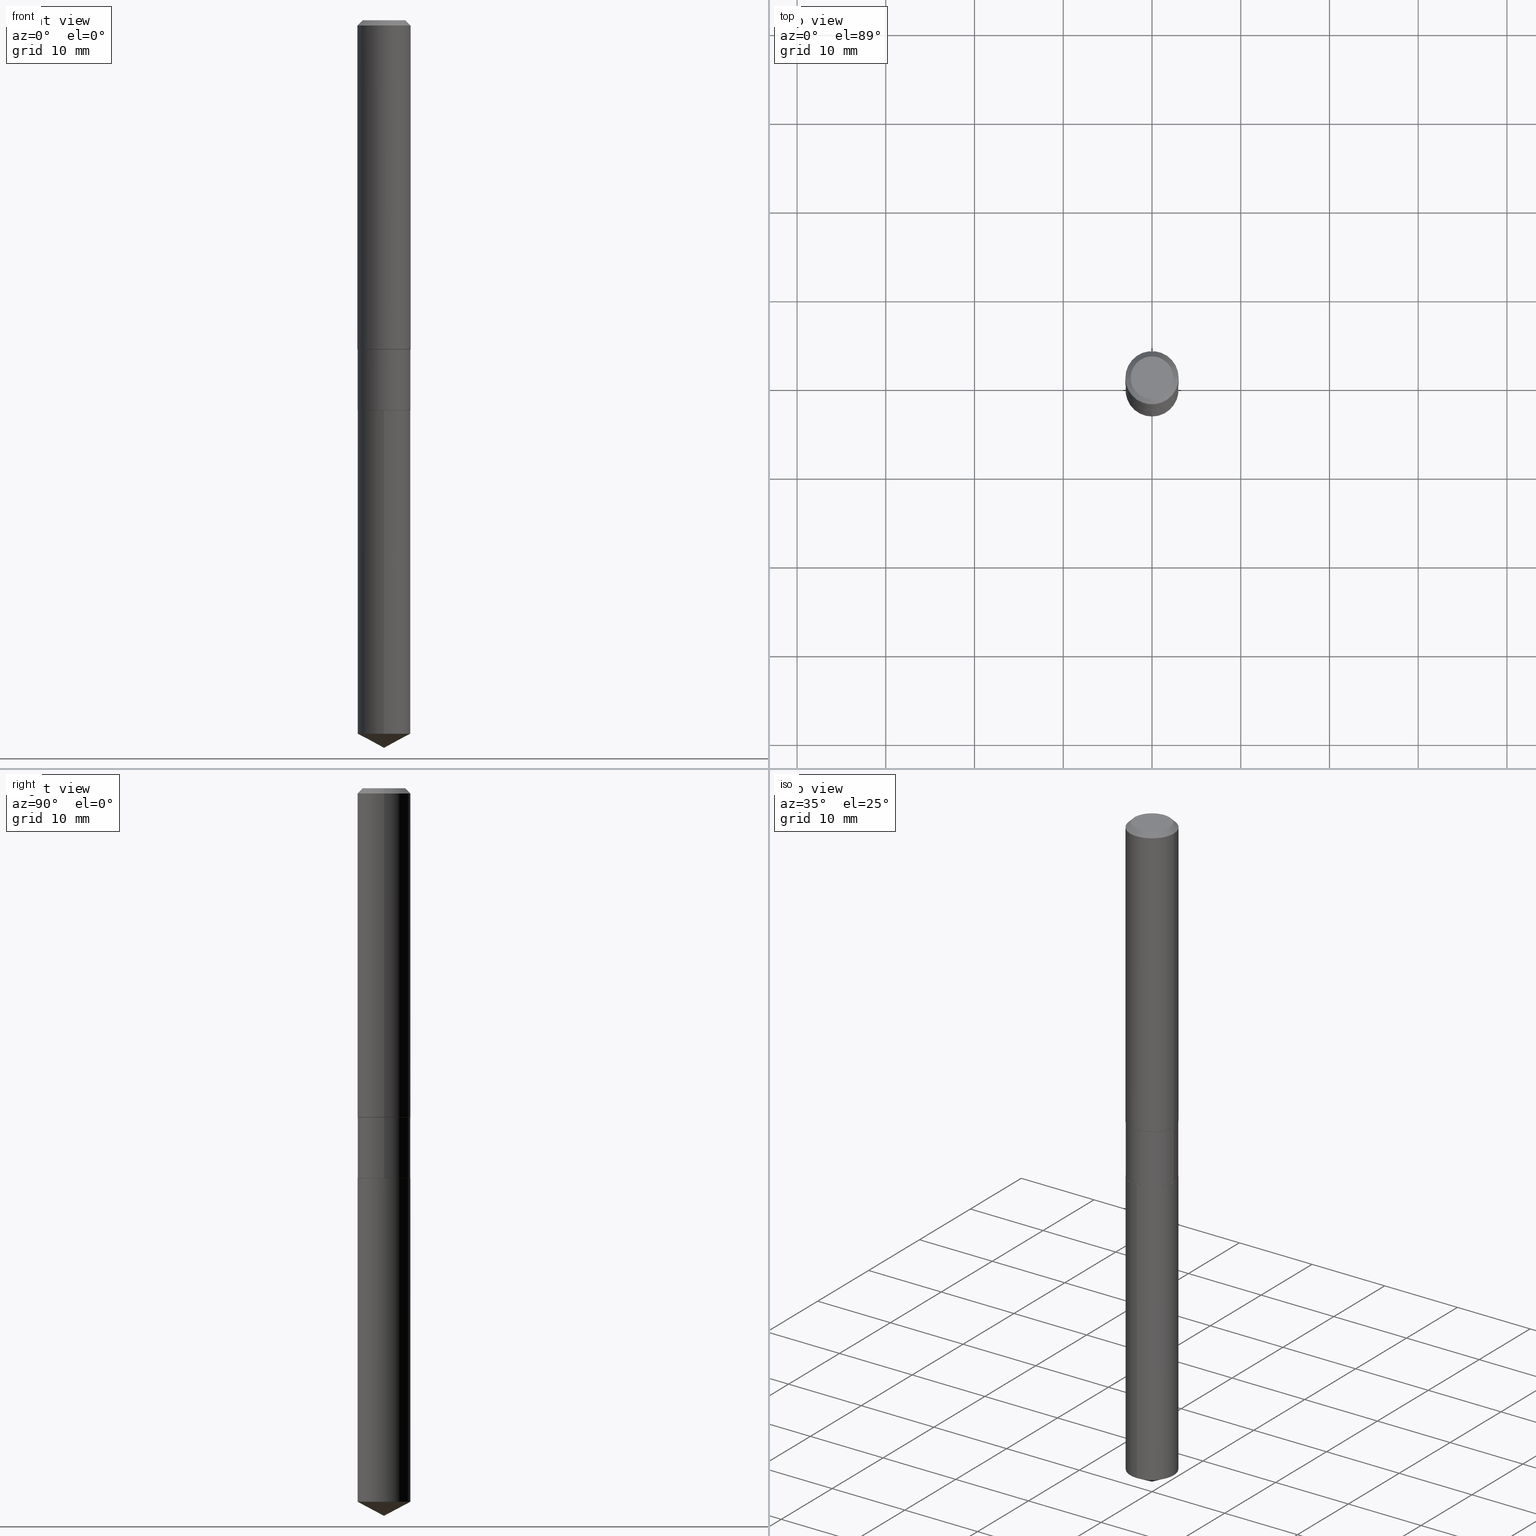
[diagram: canonical four-view strip — front | top / right | iso, engineering-drawing reading convention]
A machine part, canonical four-view strip (front | top / right | iso — engineering-drawing reading convention). The complete STEP part file that produces these views, byte-faithful:
ISO-10303-21;
HEADER;
FILE_DESCRIPTION (( 'STEP AP203' ),
    '1' );
FILE_NAME ('55009.STEP',
    '2024-04-24T16:16:54',
    ( '' ),
    ( '' ),
    'SwSTEP 2.0',
    'SolidWorks 2023',
    '' );
FILE_SCHEMA (( 'CONFIG_CONTROL_DESIGN' ));
ENDSEC;

DATA;
#1 = CARTESIAN_POINT ( 'NONE',  ( 8.327560863108796121E-16, 0.1171999999999939479, -1.730400000000000160 ) ) ;
#2 = APPROVAL ( #258, 'UNSPECIFIED' ) ;
#3 = CIRCLE ( 'NONE', #425, 0.1180999999999999966 ) ;
#4 = CIRCLE ( 'NONE', #262, 0.1171999999999999986 ) ;
#5 = EDGE_LOOP ( 'NONE', ( #103, #471, #56, #168 ) ) ;
#6 = CARTESIAN_POINT ( 'NONE',  ( 7.741833882024007276E-29, -1.105256272999543898E-14, -3.165683654609275255 ) ) ;
#7 = ORIENTED_EDGE ( 'NONE', *, *, #349, .F. ) ;
#8 = DIRECTION ( 'NONE',  ( -6.165590087286832874E-15, -0.8829475928589261002, 0.4694715627858920826 ) ) ;
#9 = DIRECTION ( 'NONE',  ( 1.000000000000000000, -6.982962677686269866E-15, 0.000000000000000000 ) ) ;
#10 = LINE ( 'NONE', #421, #111 ) ;
#11 = AXIS2_PLACEMENT_3D ( 'NONE', #232, #383, #317 ) ;
#12 = FACE_OUTER_BOUND ( 'NONE', #30, .T. ) ;
#13 = APPROVAL_PERSON_ORGANIZATION ( #443, #228, #444 ) ;
#14 = EDGE_CURVE ( 'NONE', #66, #247, #209, .T. ) ;
#15 = ORIENTED_EDGE ( 'NONE', *, *, #42, .T. ) ;
#16 = LENGTH_MEASURE_WITH_UNIT ( LENGTH_MEASURE( 0.02539999999999999897 ), #214 );
#17 = CLOSED_SHELL ( 'NONE', ( #484, #276, #101, #252, #163 ) ) ;
#18 = AXIS2_PLACEMENT_3D ( 'NONE', #192, #84, #40 ) ;
#19 = PERSON_AND_ORGANIZATION_ROLE ( 'design_supplier' ) ;
#20 = LOCAL_TIME ( 12, 16, 54.00000000000000000, #364 ) ;
#21 = VERTEX_POINT ( 'NONE', #386 ) ;
#22 = EDGE_CURVE ( 'NONE', #100, #50, #354, .T. ) ;
#23 = ORIENTED_EDGE ( 'NONE', *, *, #182, .T. ) ;
#24 = DIRECTION ( 'NONE',  ( 1.000000000000000000, -6.982962677686266711E-15, 4.876176775795935793E-29 ) ) ;
#25 = PERSON_AND_ORGANIZATION_ROLE ( 'classification_officer' ) ;
#26 = DIRECTION ( 'NONE',  ( 1.000000000000000000, -6.982962677686263555E-15, 0.000000000000000000 ) ) ;
#27 = COORDINATED_UNIVERSAL_TIME_OFFSET ( 5, 0, .BEHIND. ) ;
#28 = DIRECTION ( 'NONE',  ( 1.000000000000000000, -6.982962677686266711E-15, 0.000000000000000000 ) ) ;
#29 = ADVANCED_FACE ( 'NONE', ( #479 ), #296, .T. ) ;
#30 = EDGE_LOOP ( 'NONE', ( #331, #318, #125, #481 ) ) ;
#31 = ORIENTED_EDGE ( 'NONE', *, *, #204, .F. ) ;
#32 = DIRECTION ( 'NONE',  ( 1.000000000000000000, -6.982962677686265133E-15, 0.000000000000000000 ) ) ;
#33 = CIRCLE ( 'NONE', #78, 0.1180999999999999966 ) ;
#34 = APPROVAL ( #173, 'UNSPECIFIED' ) ;
#35 = DIRECTION ( 'NONE',  ( 1.000000000000000000, -6.982962677686265133E-15, 0.000000000000000000 ) ) ;
#36 = LINE ( 'NONE', #181, #321 ) ;
#37 = PRODUCT ( '55009', '55009', '', ( #49 ) ) ;
#38 = DIRECTION ( 'NONE',  ( -2.445468806185136597E-29, 3.491481338843145583E-15, 1.000000000000000000 ) ) ;
#39 = CONICAL_SURFACE ( 'NONE', #185, 0.1180999999999999966, 0.7853981633974461696 ) ;
#40 = DIRECTION ( 'NONE',  ( -6.982962677686265922E-15, -1.000000000000000000, 2.330928322239132474E-15 ) ) ;
#41 = CARTESIAN_POINT ( 'NONE',  ( -0.09447999999999998066, 7.009847083995354710E-16, -2.700101262760559836E-17 ) ) ;
#42 = EDGE_CURVE ( 'NONE', #361, #52, #3, .T. ) ;
#43 = DIRECTION ( 'NONE',  ( -2.445645255227839855E-29, 3.491228653771138888E-15, 1.000000000000000000 ) ) ;
#44 = DIRECTION ( 'NONE',  ( -0.7071067811865460184, 2.468850131082241283E-15, -0.7071067811865490160 ) ) ;
#45 = CARTESIAN_POINT ( 'NONE',  ( 4.231639222222760531E-29, -6.041659308734178576E-15, -1.730399999999999938 ) ) ;
#46 = FACE_OUTER_BOUND ( 'NONE', #375, .T. ) ;
#47 = AXIS2_PLACEMENT_3D ( 'NONE', #416, #73, #222 ) ;
#48 = CARTESIAN_POINT ( 'NONE',  ( 3.572340832075246748E-29, -5.100355939782065986E-15, -1.460799999999999876 ) ) ;
#49 = MECHANICAL_CONTEXT ( 'NONE', #134, 'mechanical' ) ;
#50 = VERTEX_POINT ( 'NONE', #439 ) ;
#51 = AXIS2_PLACEMENT_3D ( 'NONE', #225, #390, #112 ) ;
#52 = VERTEX_POINT ( 'NONE', #166 ) ;
#53 = CARTESIAN_POINT ( 'NONE',  ( -0.1171999999999999709, -4.737378667612574713E-15, -1.460799999999999876 ) ) ;
#54 = ORIENTED_EDGE ( 'NONE', *, *, #435, .T. ) ;
#55 = DATE_TIME_ROLE ( 'classification_date' ) ;
#56 = ORIENTED_EDGE ( 'NONE', *, *, #455, .T. ) ;
#57 = APPROVAL_STATUS ( 'not_yet_approved' ) ;
#58 = EDGE_LOOP ( 'NONE', ( #378, #64, #320, #15 ) ) ;
#59 = EDGE_CURVE ( 'NONE', #52, #361, #33, .T. ) ;
#60 = CALENDAR_DATE ( 2024, 24, 4 ) ;
#61 = VECTOR ( 'NONE', #267, 39.37007874015748854 ) ;
#62 = ORIENTED_EDGE ( 'NONE', *, *, #182, .F. ) ;
#63 = FACE_OUTER_BOUND ( 'NONE', #245, .T. ) ;
#64 = ORIENTED_EDGE ( 'NONE', *, *, #336, .F. ) ;
#65 = PERSON_AND_ORGANIZATION ( #114, #98 ) ;
#66 = VERTEX_POINT ( 'NONE', #287 ) ;
#67 = FACE_OUTER_BOUND ( 'NONE', #122, .T. ) ;
#68 = ADVANCED_FACE ( 'NONE', ( #208 ), #355, .T. ) ;
#69 = ORIENTED_EDGE ( 'NONE', *, *, #204, .T. ) ;
#70 = DIRECTION ( 'NONE',  ( 1.000000000000000000, -6.982962677686265133E-15, 0.000000000000000000 ) ) ;
#71 = AXIS2_PLACEMENT_3D ( 'NONE', #388, #83, #391 ) ;
#72 = CC_DESIGN_DATE_AND_TIME_ASSIGNMENT ( #404, #55, ( #385 ) ) ;
#73 = DIRECTION ( 'NONE',  ( 2.445645255227839294E-29, -3.491228653771138888E-15, -1.000000000000000000 ) ) ;
#74 = DIRECTION ( 'NONE',  ( -6.982962677686265922E-15, -1.000000000000000000, 4.661856644478264948E-15 ) ) ;
#75 = DIRECTION ( 'NONE',  ( 1.000000000000000000, -6.982962677686265133E-15, 0.000000000000000000 ) ) ;
#76 = EDGE_CURVE ( 'NONE', #129, #21, #468, .T. ) ;
#77 = PERSON_AND_ORGANIZATION ( #114, #98 ) ;
#78 = AXIS2_PLACEMENT_3D ( 'NONE', #243, #326, #292 ) ;
#79 = CC_DESIGN_APPROVAL ( #34, ( #395 ) ) ;
#80 = ORIENTED_EDGE ( 'NONE', *, *, #59, .F. ) ;
#81 = DIRECTION ( 'NONE',  ( -2.445468806185136877E-29, 3.491481338843145188E-15, 1.000000000000000000 ) ) ;
#82 = UNCERTAINTY_MEASURE_WITH_UNIT (LENGTH_MEASURE( 1.000000000000000082E-05 ), #432, 'distance_accuracy_value', 'NONE');
#83 = DIRECTION ( 'NONE',  ( -2.445468806185136597E-29, 3.491481338843145583E-15, 1.000000000000000000 ) ) ;
#84 = DIRECTION ( 'NONE',  ( -2.445645255227839855E-29, 3.491228653771138888E-15, 1.000000000000000000 ) ) ;
#85 = CIRCLE ( 'NONE', #18, 0.1171999999999999986 ) ;
#86 = CYLINDRICAL_SURFACE ( 'NONE', #351, 0.1171999999999999847 ) ;
#87 = DIRECTION ( 'NONE',  ( -2.445645255227839855E-29, 3.491228653771138888E-15, 1.000000000000000000 ) ) ;
#88 = ORIENTED_EDGE ( 'NONE', *, *, #330, .T. ) ;
#89 = DIRECTION ( 'NONE',  ( -6.982962677686268288E-15, -1.000000000000000000, 3.541896320645563630E-15 ) ) ;
#90 = AXIS2_PLACEMENT_3D ( 'NONE', #94, #256, #406 ) ;
#91 = ORIENTED_EDGE ( 'NONE', *, *, #290, .F. ) ;
#92 = VERTEX_POINT ( 'NONE', #186 ) ;
#93 = EDGE_CURVE ( 'NONE', #426, #266, #251, .T. ) ;
#94 = CARTESIAN_POINT ( 'NONE',  ( 0.000000000000000000, 0.000000000000000000, 0.000000000000000000 ) ) ;
#95 = DATE_AND_TIME ( #295, #20 ) ;
#96 = VECTOR ( 'NONE', #352, 39.37007874015748143 ) ;
#97 = ORIENTED_EDGE ( 'NONE', *, *, #382, .T. ) ;
#98 = ORGANIZATION ( 'UNSPECIFIED', 'UNSPECIFIED', '' ) ;
#99 = APPLICATION_PROTOCOL_DEFINITION ( 'international standard', 'config_control_design', 1994, #452 ) ;
#100 = VERTEX_POINT ( 'NONE', #180 ) ;
#101 = ADVANCED_FACE ( 'NONE', ( #46 ), #458, .T. ) ;
#102 = PERSON_AND_ORGANIZATION ( #114, #98 ) ;
#103 = ORIENTED_EDGE ( 'NONE', *, *, #106, .F. ) ;
#104 = PLANE ( 'NONE',  #47 ) ;
#105 = CIRCLE ( 'NONE', #242, 0.1171999999999999709 ) ;
#106 = EDGE_CURVE ( 'NONE', #129, #324, #240, .T. ) ;
#107 = CARTESIAN_POINT ( 'NONE',  ( 4.231639222222760531E-29, -6.041659308734178576E-15, -1.730399999999999938 ) ) ;
#108 = CARTESIAN_POINT ( 'NONE',  ( -0.1166999999999999982, -5.212455936102142263E-15, -1.730400000000000160 ) ) ;
#109 = VERTEX_POINT ( 'NONE', #401 ) ;
#110 = CARTESIAN_POINT ( 'NONE',  ( 0.1181000000000001632, -5.921901498811854753E-15, -1.459899999999999531 ) ) ;
#111 = VECTOR ( 'NONE', #81, 39.37007874015748143 ) ;
#112 = DIRECTION ( 'NONE',  ( 1.000000000000000000, -6.982962677686266711E-15, 4.876176775795936353E-29 ) ) ;
#113 = CC_DESIGN_PERSON_AND_ORGANIZATION_ASSIGNMENT ( #65, #411, ( #175 ) ) ;
#114 = PERSON ( 'UNSPECIFIED', 'UNSPECIFIED', 'UNSPECIFIED', ('UNSPECIFIED'), ('UNSPECIFIED'), ('UNSPECIFIED') ) ;
#115 = DIRECTION ( 'NONE',  ( -2.445645255227839855E-29, 3.491228653771138888E-15, 1.000000000000000000 ) ) ;
#116 = LINE ( 'NONE', #153, #270 ) ;
#117 = PERSON_AND_ORGANIZATION_ROLE ( 'creator' ) ;
#118 = CALENDAR_DATE ( 2024, 24, 4 ) ;
#119 = EDGE_LOOP ( 'NONE', ( #483, #358 ) ) ;
#120 = AXIS2_PLACEMENT_3D ( 'NONE', #107, #115, #233 ) ;
#121 = ADVANCED_BREP_SHAPE_REPRESENTATION ( '55009', ( #413, #238, #90 ), #338 ) ;
#122 = EDGE_LOOP ( 'NONE', ( #199, #470 ) ) ;
#123 = ADVANCED_FACE ( 'NONE', ( #63 ), #203, .T. ) ;
#124 = ORIENTED_EDGE ( 'NONE', *, *, #22, .T. ) ;
#125 = ORIENTED_EDGE ( 'NONE', *, *, #138, .T. ) ;
#126 = CARTESIAN_POINT ( 'NONE',  ( 0.000000000000000000, 0.000000000000000000, 0.000000000000000000 ) ) ;
#127 = AXIS2_PLACEMENT_3D ( 'NONE', #298, #43, #190 ) ;
#128 = ADVANCED_FACE ( 'NONE', ( #325 ), #344, .T. ) ;
#129 = VERTEX_POINT ( 'NONE', #136 ) ;
#130 = EDGE_LOOP ( 'NONE', ( #187, #219, #80, #7 ) ) ;
#131 = DIRECTION ( 'NONE',  ( 1.000000000000000000, -6.982962677686263555E-15, 0.000000000000000000 ) ) ;
#132 = PERSON_AND_ORGANIZATION ( #114, #98 ) ;
#133 = DIRECTION ( 'NONE',  ( -2.445468806185136597E-29, 3.491481338843145583E-15, 1.000000000000000000 ) ) ;
#134 = APPLICATION_CONTEXT ( 'configuration controlled 3d designs of mechanical parts and assemblies' ) ;
#135 = CARTESIAN_POINT ( 'NONE',  ( 3.572340832075246748E-29, -5.100355939782065986E-15, -1.460799999999999876 ) ) ;
#136 = CARTESIAN_POINT ( 'NONE',  ( -0.1172000000000000125, -4.737378667612574713E-15, -1.729899999999999993 ) ) ;
#137 = DIRECTION ( 'NONE',  ( -6.982962677686265922E-15, -1.000000000000000000, 2.330928322239132474E-15 ) ) ;
#138 = EDGE_CURVE ( 'NONE', #426, #21, #36, .T. ) ;
#139 = AXIS2_PLACEMENT_3D ( 'NONE', #212, #376, #342 ) ;
#140 = ORIENTED_EDGE ( 'NONE', *, *, #374, .F. ) ;
#141 = CARTESIAN_POINT ( 'NONE',  ( -0.1181000000000000799, 8.391509709326788873E-16, -5.809262341591047988E-30 ) ) ;
#142 = DIRECTION ( 'NONE',  ( -2.445468806185136597E-29, 3.491481338843145583E-15, 1.000000000000000000 ) ) ;
#143 = SHAPE_DEFINITION_REPRESENTATION ( #300, #121 ) ;
#144 = LINE ( 'NONE', #1, #156 ) ;
#145 = COORDINATED_UNIVERSAL_TIME_OFFSET ( 5, 0, .BEHIND. ) ;
#146 = DIRECTION ( 'NONE',  ( -2.445468806185136597E-29, 3.491481338843145583E-15, 1.000000000000000000 ) ) ;
#147 = CARTESIAN_POINT ( 'NONE',  ( 0.1171999999999999709, -5.918759165606896047E-15, -1.460799999999999876 ) ) ;
#148 = EDGE_CURVE ( 'NONE', #109, #361, #263, .T. ) ;
#149 = CONICAL_SURFACE ( 'NONE', #202, 0.1166999999999999982, 0.7853981633972775267 ) ;
#150 = CARTESIAN_POINT ( 'NONE',  ( 3.572340832075246748E-29, -5.100355939782065986E-15, -1.460799999999999876 ) ) ;
#151 = ORIENTED_EDGE ( 'NONE', *, *, #22, .F. ) ;
#152 = CARTESIAN_POINT ( 'NONE',  ( -0.1180999999999999966, -1.750690226967611791E-15, -0.02362000000000014088 ) ) ;
#153 = CARTESIAN_POINT ( 'NONE',  ( -0.1180999999999999966, 7.422191030112725094E-16, -0.02362000000000014088 ) ) ;
#154 = DIRECTION ( 'NONE',  ( 1.000000000000000000, -6.982962677686270655E-15, 0.000000000000000000 ) ) ;
#155 = AXIS2_PLACEMENT_3D ( 'NONE', #195, #87, #89 ) ;
#156 = VECTOR ( 'NONE', #303, 39.37007874015748143 ) ;
#157 = CARTESIAN_POINT ( 'NONE',  ( 8.327560863109149136E-16, 0.1171999999999939340, -1.730400000000000160 ) ) ;
#158 = LINE ( 'NONE', #108, #221 ) ;
#159 = DIRECTION ( 'NONE',  ( -0.7071067811864267805, 7.493145998869918709E-15, 0.7071067811866682540 ) ) ;
#160 = DIRECTION ( 'NONE',  ( -2.445645255227839855E-29, 3.491228653771138888E-15, 1.000000000000000000 ) ) ;
#161 = DIRECTION ( 'NONE',  ( 0.7071067811865460184, -7.319954787623251312E-15, -0.7071067811865490160 ) ) ;
#162 = ORIENTED_EDGE ( 'NONE', *, *, #374, .T. ) ;
#163 = ADVANCED_FACE ( 'NONE', ( #294 ), #104, .F. ) ;
#164 = CIRCLE ( 'NONE', #120, 0.1171999999999999986 ) ;
#165 =( NAMED_UNIT ( * ) SI_UNIT ( $, .STERADIAN. ) SOLID_ANGLE_UNIT ( ) );
#166 = CARTESIAN_POINT ( 'NONE',  ( 0.1180999999999999966, -9.071566814582237199E-16, -0.02362000000000014088 ) ) ;
#167 = ADVANCED_FACE ( 'NONE', ( #67 ), #220, .F. ) ;
#168 = ORIENTED_EDGE ( 'NONE', *, *, #382, .F. ) ;
#169 = ORIENTED_EDGE ( 'NONE', *, *, #280, .F. ) ;
#170 = DIRECTION ( 'NONE',  ( 2.445468806185136597E-29, -3.491481338843145583E-15, -1.000000000000000000 ) ) ;
#171 = CARTESIAN_POINT ( 'NONE',  ( 5.776197320209327532E-31, -8.246878922347559293E-17, -0.02362000000000014088 ) ) ;
#172 = DIRECTION ( 'NONE',  ( 2.445468806185136597E-29, -3.491481338843145583E-15, -1.000000000000000000 ) ) ;
#173 = APPROVAL_STATUS ( 'not_yet_approved' ) ;
#174 = CARTESIAN_POINT ( 'NONE',  ( 0.000000000000000000, 0.000000000000000000, 0.000000000000000000 ) ) ;
#175 = PRODUCT_DEFINITION ( 'UNKNOWN', '', #395, #451 ) ;
#176 = EDGE_LOOP ( 'NONE', ( #327, #257, #472, #230 ) ) ;
#177 = CARTESIAN_POINT ( 'NONE',  ( 4.231639222222761092E-29, -6.041659308734179365E-15, -1.730400000000000160 ) ) ;
#178 = VECTOR ( 'NONE', #381, 39.37007874015748143 ) ;
#179 = DIRECTION ( 'NONE',  ( 0.7071067811864267805, -2.468850131080992517E-15, 0.7071067811866682540 ) ) ;
#180 = CARTESIAN_POINT ( 'NONE',  ( 8.327560863109148150E-16, 0.1171999999999889519, -3.165683654609275699 ) ) ;
#181 = CARTESIAN_POINT ( 'NONE',  ( 0.1166999999999999982, -6.856571053220166418E-15, -1.730400000000000160 ) ) ;
#182 = EDGE_CURVE ( 'NONE', #324, #109, #410, .T. ) ;
#183 = DIRECTION ( 'NONE',  ( 1.000000000000000000, -6.982962677686265922E-15, 4.876176775795935793E-29 ) ) ;
#184 = AXIS2_PLACEMENT_3D ( 'NONE', #135, #368, #131 ) ;
#185 = AXIS2_PLACEMENT_3D ( 'NONE', #369, #172, #373 ) ;
#186 = CARTESIAN_POINT ( 'NONE',  ( 7.894542883875466127E-29, -1.126968609437323683E-14, -3.228000000000000203 ) ) ;
#187 = ORIENTED_EDGE ( 'NONE', *, *, #290, .T. ) ;
#188 = PERSON_AND_ORGANIZATION ( #114, #98 ) ;
#189 = EDGE_CURVE ( 'NONE', #266, #426, #380, .T. ) ;
#190 = DIRECTION ( 'NONE',  ( -6.982962677686265922E-15, -1.000000000000000000, 4.661856644478264948E-15 ) ) ;
#191 = DIRECTION ( 'NONE',  ( -6.982962677686265922E-15, -1.000000000000000000, 2.330928322239132474E-15 ) ) ;
#192 = CARTESIAN_POINT ( 'NONE',  ( 4.231639222222760531E-29, -6.041659308734178576E-15, -1.730399999999999938 ) ) ;
#193 = DIRECTION ( 'NONE',  ( -1.000000000000000000, 6.982962677686265922E-15, -4.876176775795935793E-29 ) ) ;
#194 = VECTOR ( 'NONE', #8, 39.37007874015748854 ) ;
#195 = CARTESIAN_POINT ( 'NONE',  ( -8.839100871236061218E-28, 1.261798236582419086E-13, 36.14207874015747990 ) ) ;
#196 = ADVANCED_FACE ( 'NONE', ( #339 ), #446, .T. ) ;
#197 = ORIENTED_EDGE ( 'NONE', *, *, #345, .F. ) ;
#198 = CC_DESIGN_PERSON_AND_ORGANIZATION_ASSIGNMENT ( #307, #19, ( #395 ) ) ;
#199 = ORIENTED_EDGE ( 'NONE', *, *, #93, .F. ) ;
#200 = AXIS2_PLACEMENT_3D ( 'NONE', #45, #160, #137 ) ;
#201 = ORIENTED_EDGE ( 'NONE', *, *, #106, .T. ) ;
#202 = AXIS2_PLACEMENT_3D ( 'NONE', #217, #418, #70 ) ;
#203 = CYLINDRICAL_SURFACE ( 'NONE', #474, 0.1171999999999999847 ) ;
#204 = EDGE_CURVE ( 'NONE', #100, #464, #144, .T. ) ;
#205 = ORIENTED_EDGE ( 'NONE', *, *, #330, .F. ) ;
#206 = CARTESIAN_POINT ( 'NONE',  ( 3.572340832075246748E-29, -5.100355939782065986E-15, -1.460799999999999876 ) ) ;
#207 = VERTEX_POINT ( 'NONE', #147 ) ;
#208 = FACE_OUTER_BOUND ( 'NONE', #359, .T. ) ;
#209 = CIRCLE ( 'NONE', #139, 0.09447999999999998066 ) ;
#210 = AXIS2_PLACEMENT_3D ( 'NONE', #206, #363, #26 ) ;
#211 = CALENDAR_DATE ( 2024, 24, 4 ) ;
#212 = CARTESIAN_POINT ( 'NONE',  ( 6.603013411620882309E-46, -9.427353171913646324E-32, -2.700101262760083747E-17 ) ) ;
#213 = FACE_OUTER_BOUND ( 'NONE', #356, .T. ) ;
#214 =( LENGTH_UNIT ( ) NAMED_UNIT ( * ) SI_UNIT ( $, .METRE. ) );
#215 = ADVANCED_FACE ( 'NONE', ( #213 ), #149, .T. ) ;
#216 = ORIENTED_EDGE ( 'NONE', *, *, #397, .F. ) ;
#217 = CARTESIAN_POINT ( 'NONE',  ( 4.231639222222761092E-29, -6.041659308734179365E-15, -1.730400000000000160 ) ) ;
#218 = APPROVAL_DATE_TIME ( #485, #34 ) ;
#219 = ORIENTED_EDGE ( 'NONE', *, *, #148, .T. ) ;
#220 = PLANE ( 'NONE',  #488 ) ;
#221 = VECTOR ( 'NONE', #159, 39.37007874015748143 ) ;
#222 = DIRECTION ( 'NONE',  ( 6.982962677686265922E-15, 1.000000000000000000, -3.491228653771138888E-15 ) ) ;
#223 = ADVANCED_FACE ( 'NONE', ( #340 ), #39, .T. ) ;
#224 = CARTESIAN_POINT ( 'NONE',  ( -0.1171999999999999709, -4.267599853471228775E-15, -1.460799999999999876 ) ) ;
#225 = CARTESIAN_POINT ( 'NONE',  ( 0.000000000000000000, 0.000000000000000000, 0.000000000000000000 ) ) ;
#226 = CARTESIAN_POINT ( 'NONE',  ( -0.1166999999999999982, -5.209806708928030273E-15, -1.730400000000000160 ) ) ;
#227 = DIRECTION ( 'NONE',  ( -2.445468806185136597E-29, 3.491481338843145583E-15, 1.000000000000000000 ) ) ;
#228 = APPROVAL ( #57, 'UNSPECIFIED' ) ;
#229 = AXIS2_PLACEMENT_3D ( 'NONE', #462, #227, #154 ) ;
#230 = ORIENTED_EDGE ( 'NONE', *, *, #42, .F. ) ;
#231 = LINE ( 'NONE', #454, #61 ) ;
#232 = CARTESIAN_POINT ( 'NONE',  ( -8.839100871236061218E-28, 1.261798236582419086E-13, 36.14207874015747990 ) ) ;
#233 = DIRECTION ( 'NONE',  ( -6.982962677686265922E-15, -1.000000000000000000, 2.330928322239132474E-15 ) ) ;
#234 = CARTESIAN_POINT ( 'NONE',  ( 7.893932229028479342E-29, -1.127056058687043788E-14, -3.228000000000000203 ) ) ;
#235 = VECTOR ( 'NONE', #161, 39.37007874015748143 ) ;
#236 = CC_DESIGN_SECURITY_CLASSIFICATION ( #385, ( #395 ) ) ;
#237 = EDGE_CURVE ( 'NONE', #266, #129, #158, .T. ) ;
#238 = MANIFOLD_SOLID_BREP ( 'Body-Move/Copy2[2]', #285 ) ;
#239 = ORIENTED_EDGE ( 'NONE', *, *, #302, .F. ) ;
#240 = LINE ( 'NONE', #248, #379 ) ;
#241 = AXIS2_PLACEMENT_3D ( 'NONE', #367, #170, #333 ) ;
#242 = AXIS2_PLACEMENT_3D ( 'NONE', #150, #392, #304 ) ;
#243 = CARTESIAN_POINT ( 'NONE',  ( 5.776197320209327532E-31, -8.246878922347559293E-17, -0.02362000000000014088 ) ) ;
#244 = CARTESIAN_POINT ( 'NONE',  ( 0.1180999999999999966, -8.926936027602933910E-16, -0.02362000000000014088 ) ) ;
#245 = EDGE_LOOP ( 'NONE', ( #289, #201, #197, #436 ) ) ;
#246 = CC_DESIGN_PERSON_AND_ORGANIZATION_ASSIGNMENT ( #188, #25, ( #385 ) ) ;
#247 = VERTEX_POINT ( 'NONE', #41 ) ;
#248 = CARTESIAN_POINT ( 'NONE',  ( -0.1171999999999999847, 8.327560863108373095E-16, -5.764991925778748420E-30 ) ) ;
#249 = ORIENTED_EDGE ( 'NONE', *, *, #450, .T. ) ;
#250 = ORIENTED_EDGE ( 'NONE', *, *, #138, .F. ) ;
#251 = CIRCLE ( 'NONE', #269, 0.1166999999999999982 ) ;
#252 = ADVANCED_FACE ( 'NONE', ( #319 ), #273, .T. ) ;
#253 = CONICAL_SURFACE ( 'NONE', #11, 74.04434902938348273, 1.082104136236486269 ) ;
#254 = LOCAL_TIME ( 12, 16, 54.00000000000000000, #414 ) ;
#255 = DIRECTION ( 'NONE',  ( -2.438088387897960049E-29, 3.491481338843145188E-15, 1.000000000000000000 ) ) ;
#256 = DIRECTION ( 'NONE',  ( 0.000000000000000000, 0.000000000000000000, 1.000000000000000000 ) ) ;
#257 = ORIENTED_EDGE ( 'NONE', *, *, #473, .T. ) ;
#258 = APPROVAL_STATUS ( 'not_yet_approved' ) ;
#259 = SECURITY_CLASSIFICATION_LEVEL ( 'unclassified' ) ;
#260 = DIRECTION ( 'NONE',  ( -2.445468806185136597E-29, 3.491481338843145583E-15, 1.000000000000000000 ) ) ;
#261 = CC_DESIGN_PERSON_AND_ORGANIZATION_ASSIGNMENT ( #77, #117, ( #395 ) ) ;
#262 = AXIS2_PLACEMENT_3D ( 'NONE', #6, #265, #74 ) ;
#263 = LINE ( 'NONE', #141, #365 ) ;
#264 = LINE ( 'NONE', #272, #96 ) ;
#265 = DIRECTION ( 'NONE',  ( -2.445645255227839855E-29, 3.491228653771138888E-15, 1.000000000000000000 ) ) ;
#266 = VERTEX_POINT ( 'NONE', #226 ) ;
#267 = DIRECTION ( 'NONE',  ( 6.273719981627763710E-15, 0.8829475928589293199, 0.4694715627858859208 ) ) ;
#268 = CC_DESIGN_PERSON_AND_ORGANIZATION_ASSIGNMENT ( #291, #353, ( #37 ) ) ;
#269 = AXIS2_PLACEMENT_3D ( 'NONE', #177, #142, #35 ) ;
#270 = VECTOR ( 'NONE', #44, 39.37007874015748143 ) ;
#271 = LOCAL_TIME ( 12, 16, 54.00000000000000000, #334 ) ;
#272 = CARTESIAN_POINT ( 'NONE',  ( -8.184032258247879554E-16, -0.1172000000000060493, -1.730399999999999716 ) ) ;
#273 = CYLINDRICAL_SURFACE ( 'NONE', #448, 0.1171999999999999986 ) ;
#274 = CARTESIAN_POINT ( 'NONE',  ( 0.1171999999999999709, -5.918759165606896047E-15, -1.460799999999999876 ) ) ;
#275 = LINE ( 'NONE', #244, #235 ) ;
#276 = ADVANCED_FACE ( 'NONE', ( #277 ), #253, .T. ) ;
#277 = FACE_OUTER_BOUND ( 'NONE', #283, .T. ) ;
#278 = CIRCLE ( 'NONE', #229, 0.1181000000000001632 ) ;
#279 = ORIENTED_EDGE ( 'NONE', *, *, #357, .F. ) ;
#280 = EDGE_CURVE ( 'NONE', #21, #129, #337, .T. ) ;
#281 = ORIENTED_EDGE ( 'NONE', *, *, #435, .F. ) ;
#282 = DIRECTION ( 'NONE',  ( 1.000000000000000000, -6.982962677686266711E-15, 4.876176775795935793E-29 ) ) ;
#283 = EDGE_LOOP ( 'NONE', ( #205, #54, #362 ) ) ;
#284 = CARTESIAN_POINT ( 'NONE',  ( 0.000000000000000000, 0.000000000000000000, 0.000000000000000000 ) ) ;
#285 = CLOSED_SHELL ( 'NONE', ( #215, #68, #440, #29, #123, #322, #128, #196, #223, #309, #167, #467 ) ) ;
#286 = AXIS2_PLACEMENT_3D ( 'NONE', #430, #346, #9 ) ;
#287 = CARTESIAN_POINT ( 'NONE',  ( 0.09447999999999998066, -7.704367267948738690E-16, -2.700101262759583929E-17 ) ) ;
#288 = APPROVAL_ROLE ( '' ) ;
#289 = ORIENTED_EDGE ( 'NONE', *, *, #280, .T. ) ;
#290 = EDGE_CURVE ( 'NONE', #417, #109, #399, .T. ) ;
#291 = PERSON_AND_ORGANIZATION ( #114, #98 ) ;
#292 = DIRECTION ( 'NONE',  ( 1.000000000000000000, -6.982962677686266711E-15, 0.000000000000000000 ) ) ;
#293 = DIRECTION ( 'NONE',  ( -2.445468806185136597E-29, 3.491481338843145583E-15, 1.000000000000000000 ) ) ;
#294 = FACE_OUTER_BOUND ( 'NONE', #456, .T. ) ;
#295 = CALENDAR_DATE ( 2024, 24, 4 ) ;
#296 = CONICAL_SURFACE ( 'NONE', #184, 0.1171999999999999709, 0.7853981633974198573 ) ;
#297 = AXIS2_PLACEMENT_3D ( 'NONE', #48, #343, #315 ) ;
#298 = CARTESIAN_POINT ( 'NONE',  ( 7.741833882024007276E-29, -1.105256272999543898E-14, -3.165683654609275255 ) ) ;
#299 = CARTESIAN_POINT ( 'NONE',  ( 1.403036846735455554E-29, -1.009237890448108840E-14, -1.730400000000000160 ) ) ;
#300 = PRODUCT_DEFINITION_SHAPE ( 'NONE', 'NONE',  #175 ) ;
#301 = LINE ( 'NONE', #234, #194 ) ;
#302 = EDGE_CURVE ( 'NONE', #247, #361, #116, .T. ) ;
#303 = DIRECTION ( 'NONE',  ( -2.445645255227839855E-29, 3.491228653771138888E-15, 1.000000000000000000 ) ) ;
#304 = DIRECTION ( 'NONE',  ( 1.000000000000000000, -6.982962677686263555E-15, 0.000000000000000000 ) ) ;
#305 = AXIS2_PLACEMENT_3D ( 'NONE', #174, #420, #490 ) ;
#306 = CC_DESIGN_APPROVAL ( #228, ( #175 ) ) ;
#307 = PERSON_AND_ORGANIZATION ( #114, #98 ) ;
#308 = LINE ( 'NONE', #431, #178 ) ;
#309 = ADVANCED_FACE ( 'NONE', ( #312 ), #348, .F. ) ;
#310 = ORIENTED_EDGE ( 'NONE', *, *, #473, .F. ) ;
#311 = DIRECTION ( 'NONE',  ( 1.000000000000000000, -6.982962677686267499E-15, 4.875432709231658792E-29 ) ) ;
#312 = FACE_OUTER_BOUND ( 'NONE', #119, .T. ) ;
#313 = FACE_OUTER_BOUND ( 'NONE', #438, .T. ) ;
#314 = APPROVAL_PERSON_ORGANIZATION ( #132, #34, #408 ) ;
#315 = DIRECTION ( 'NONE',  ( 1.000000000000000000, -6.982962677686263555E-15, 0.000000000000000000 ) ) ;
#316 = EDGE_CURVE ( 'NONE', #66, #52, #275, .T. ) ;
#317 = DIRECTION ( 'NONE',  ( -6.982962677686268288E-15, -1.000000000000000000, 3.541896320645563630E-15 ) ) ;
#318 = ORIENTED_EDGE ( 'NONE', *, *, #189, .T. ) ;
#319 = FACE_OUTER_BOUND ( 'NONE', #329, .T. ) ;
#320 = ORIENTED_EDGE ( 'NONE', *, *, #302, .T. ) ;
#321 = VECTOR ( 'NONE', #179, 39.37007874015748143 ) ;
#322 = ADVANCED_FACE ( 'NONE', ( #437 ), #86, .T. ) ;
#323 = ORIENTED_EDGE ( 'NONE', *, *, #316, .T. ) ;
#324 = VERTEX_POINT ( 'NONE', #53 ) ;
#325 = FACE_OUTER_BOUND ( 'NONE', #402, .T. ) ;
#326 = DIRECTION ( 'NONE',  ( -2.445468806185136597E-29, 3.491481338843145583E-15, 1.000000000000000000 ) ) ;
#327 = ORIENTED_EDGE ( 'NONE', *, *, #148, .F. ) ;
#328 = AXIS2_PLACEMENT_3D ( 'NONE', #460, #146, #311 ) ;
#329 = EDGE_LOOP ( 'NONE', ( #31, #124, #412, #140 ) ) ;
#330 = EDGE_CURVE ( 'NONE', #92, #50, #301, .T. ) ;
#331 = ORIENTED_EDGE ( 'NONE', *, *, #237, .F. ) ;
#332 = DATE_AND_TIME ( #118, #477 ) ;
#333 = DIRECTION ( 'NONE',  ( -1.000000000000000000, 6.982962677686266711E-15, 0.000000000000000000 ) ) ;
#334 = COORDINATED_UNIVERSAL_TIME_OFFSET ( 5, 0, .BEHIND. ) ;
#335 = VERTEX_POINT ( 'NONE', #457 ) ;
#336 = EDGE_CURVE ( 'NONE', #247, #66, #469, .T. ) ;
#337 = CIRCLE ( 'NONE', #286, 0.1171999999999999986 ) ;
#338 =( GEOMETRIC_REPRESENTATION_CONTEXT ( 3 ) GLOBAL_UNCERTAINTY_ASSIGNED_CONTEXT ( ( #82 ) ) GLOBAL_UNIT_ASSIGNED_CONTEXT ( ( #432, #370, #165 ) ) REPRESENTATION_CONTEXT ( 'NONE', 'WORKASPACE' ) );
#339 = FACE_OUTER_BOUND ( 'NONE', #176, .T. ) ;
#340 = FACE_OUTER_BOUND ( 'NONE', #58, .T. ) ;
#341 = DIRECTION ( 'NONE',  ( -0.7071067811865273667, 7.493145998870281585E-15, 0.7071067811865676678 ) ) ;
#342 = DIRECTION ( 'NONE',  ( 1.000000000000000000, -6.982962677686267499E-15, 4.875432709231658792E-29 ) ) ;
#343 = DIRECTION ( 'NONE',  ( -2.445468806185136597E-29, 3.491481338843145583E-15, 1.000000000000000000 ) ) ;
#344 = CONICAL_SURFACE ( 'NONE', #210, 0.1171999999999999709, 0.7853981633974198573 ) ;
#345 = EDGE_CURVE ( 'NONE', #207, #324, #433, .T. ) ;
#346 = DIRECTION ( 'NONE',  ( -2.445468806185136597E-29, 3.491481338843145583E-15, 1.000000000000000000 ) ) ;
#347 = CARTESIAN_POINT ( 'NONE',  ( 4.231639222222761092E-29, -6.041659308734179365E-15, -1.730400000000000160 ) ) ;
#348 = PLANE ( 'NONE',  #459 ) ;
#349 = EDGE_CURVE ( 'NONE', #417, #52, #10, .T. ) ;
#350 = CARTESIAN_POINT ( 'NONE',  ( 0.1166999999999999982, -6.856571053220166418E-15, -1.730400000000000160 ) ) ;
#351 = AXIS2_PLACEMENT_3D ( 'NONE', #126, #403, #282 ) ;
#352 = DIRECTION ( 'NONE',  ( -2.445645255227839855E-29, 3.491228653771138888E-15, 1.000000000000000000 ) ) ;
#353 = PERSON_AND_ORGANIZATION_ROLE ( 'design_owner' ) ;
#354 = CIRCLE ( 'NONE', #127, 0.1171999999999999986 ) ;
#355 = CONICAL_SURFACE ( 'NONE', #241, 0.1180999999999999966, 0.7853981633974461696 ) ;
#356 = EDGE_LOOP ( 'NONE', ( #415, #441, #169, #250 ) ) ;
#357 = EDGE_CURVE ( 'NONE', #335, #464, #164, .T. ) ;
#358 = ORIENTED_EDGE ( 'NONE', *, *, #14, .T. ) ;
#359 = EDGE_LOOP ( 'NONE', ( #400, #323, #372, #239 ) ) ;
#360 = DIRECTION ( 'NONE',  ( -2.445468806185136597E-29, 3.491481338843145583E-15, 1.000000000000000000 ) ) ;
#361 = VERTEX_POINT ( 'NONE', #152 ) ;
#362 = ORIENTED_EDGE ( 'NONE', *, *, #428, .F. ) ;
#363 = DIRECTION ( 'NONE',  ( -2.445468806185136597E-29, 3.491481338843145583E-15, 1.000000000000000000 ) ) ;
#364 = COORDINATED_UNIVERSAL_TIME_OFFSET ( 5, 0, .BEHIND. ) ;
#365 = VECTOR ( 'NONE', #422, 39.37007874015748143 ) ;
#366 = LOCAL_TIME ( 12, 16, 54.00000000000000000, #145 ) ;
#367 = CARTESIAN_POINT ( 'NONE',  ( 5.776197320209327532E-31, -8.246878922347559293E-17, -0.02362000000000014088 ) ) ;
#368 = DIRECTION ( 'NONE',  ( -2.445468806185136597E-29, 3.491481338843145583E-15, 1.000000000000000000 ) ) ;
#369 = CARTESIAN_POINT ( 'NONE',  ( 5.776197320209327532E-31, -8.246878922347559293E-17, -0.02362000000000014088 ) ) ;
#370 =( NAMED_UNIT ( * ) PLANE_ANGLE_UNIT ( ) SI_UNIT ( $, .RADIAN. ) );
#371 = DATE_AND_TIME ( #211, #254 ) ;
#372 = ORIENTED_EDGE ( 'NONE', *, *, #59, .T. ) ;
#373 = DIRECTION ( 'NONE',  ( -1.000000000000000000, 6.982962677686266711E-15, 0.000000000000000000 ) ) ;
#374 = EDGE_CURVE ( 'NONE', #464, #335, #85, .T. ) ;
#375 = EDGE_LOOP ( 'NONE', ( #281, #88, #151 ) ) ;
#376 = DIRECTION ( 'NONE',  ( -2.445468806185136597E-29, 3.491481338843145583E-15, 1.000000000000000000 ) ) ;
#377 = CARTESIAN_POINT ( 'NONE',  ( 4.231639222222761092E-29, -6.041659308734179365E-15, -1.730400000000000160 ) ) ;
#378 = ORIENTED_EDGE ( 'NONE', *, *, #316, .F. ) ;
#379 = VECTOR ( 'NONE', #405, 39.37007874015748143 ) ;
#380 = CIRCLE ( 'NONE', #475, 0.1166999999999999982 ) ;
#381 = DIRECTION ( 'NONE',  ( -2.445468806185136877E-29, 3.491481338843145188E-15, 1.000000000000000000 ) ) ;
#382 = EDGE_CURVE ( 'NONE', #324, #207, #105, .T. ) ;
#383 = DIRECTION ( 'NONE',  ( -2.445645255227839855E-29, 3.491228653771138888E-15, 1.000000000000000000 ) ) ;
#384 = CONICAL_SURFACE ( 'NONE', #419, 0.1166999999999999982, 0.7853981633972775267 ) ;
#385 = SECURITY_CLASSIFICATION ( '', '', #259 ) ;
#386 = CARTESIAN_POINT ( 'NONE',  ( 0.1171999999999999986, -6.858316793889587922E-15, -1.729899999999999993 ) ) ;
#387 = DIRECTION ( 'NONE',  ( 0.7071067811865273667, -2.468850131082045646E-15, 0.7071067811865676678 ) ) ;
#388 = CARTESIAN_POINT ( 'NONE',  ( 3.570139910149679929E-29, -5.097213606577107280E-15, -1.459899999999999531 ) ) ;
#389 = CC_DESIGN_DATE_AND_TIME_ASSIGNMENT ( #332, #480, ( #175 ) ) ;
#390 = DIRECTION ( 'NONE',  ( -2.445468806185136597E-29, 3.491481338843145583E-15, 1.000000000000000000 ) ) ;
#391 = DIRECTION ( 'NONE',  ( 1.000000000000000000, -6.982962677686270655E-15, 0.000000000000000000 ) ) ;
#392 = DIRECTION ( 'NONE',  ( -2.445468806185136597E-29, 3.491481338843145583E-15, 1.000000000000000000 ) ) ;
#393 = CARTESIAN_POINT ( 'NONE',  ( 3.301506705810441154E-46, -4.713676585956823162E-32, -1.350050631380041873E-17 ) ) ;
#394 = VECTOR ( 'NONE', #387, 39.37007874015748143 ) ;
#395 = PRODUCT_DEFINITION_FORMATION_WITH_SPECIFIED_SOURCE ( 'ANY', '', #37, .NOT_KNOWN. ) ;
#396 = APPLICATION_PROTOCOL_DEFINITION ( 'international standard', 'config_control_design', 1994, #134 ) ;
#397 = EDGE_CURVE ( 'NONE', #50, #335, #264, .T. ) ;
#398 = ORIENTED_EDGE ( 'NONE', *, *, #357, .T. ) ;
#399 = CIRCLE ( 'NONE', #71, 0.1181000000000001632 ) ;
#400 = ORIENTED_EDGE ( 'NONE', *, *, #14, .F. ) ;
#401 = CARTESIAN_POINT ( 'NONE',  ( -0.1181000000000001632, -4.258062635644426716E-15, -1.459899999999999531 ) ) ;
#402 = EDGE_LOOP ( 'NONE', ( #62, #97, #249, #310 ) ) ;
#403 = DIRECTION ( 'NONE',  ( -2.445468806185136597E-29, 3.491481338843145583E-15, 1.000000000000000000 ) ) ;
#404 = DATE_AND_TIME ( #60, #366 ) ;
#405 = DIRECTION ( 'NONE',  ( -2.445468806185136877E-29, 3.491481338843145188E-15, 1.000000000000000000 ) ) ;
#406 = DIRECTION ( 'NONE',  ( 1.000000000000000000, 0.000000000000000000, 0.000000000000000000 ) ) ;
#407 = PRODUCT_RELATED_PRODUCT_CATEGORY ( 'detail', '', ( #37 ) ) ;
#408 = APPROVAL_ROLE ( '' ) ;
#409 = VECTOR ( 'NONE', #341, 39.37007874015748143 ) ;
#410 = LINE ( 'NONE', #224, #409 ) ;
#411 = PERSON_AND_ORGANIZATION_ROLE ( 'creator' ) ;
#412 = ORIENTED_EDGE ( 'NONE', *, *, #397, .T. ) ;
#413 = MANIFOLD_SOLID_BREP ( 'Body-Move/Copy2[1]', #17 ) ;
#414 = COORDINATED_UNIVERSAL_TIME_OFFSET ( 5, 0, .BEHIND. ) ;
#415 = ORIENTED_EDGE ( 'NONE', *, *, #93, .T. ) ;
#416 = CARTESIAN_POINT ( 'NONE',  ( 4.231639222222760531E-29, -6.041659308734178576E-15, -1.730399999999999938 ) ) ;
#417 = VERTEX_POINT ( 'NONE', #110 ) ;
#418 = DIRECTION ( 'NONE',  ( -2.445468806185136597E-29, 3.491481338843145583E-15, 1.000000000000000000 ) ) ;
#419 = AXIS2_PLACEMENT_3D ( 'NONE', #347, #38, #75 ) ;
#420 = DIRECTION ( 'NONE',  ( -2.445468806185136597E-29, 3.491481338843145583E-15, 1.000000000000000000 ) ) ;
#421 = CARTESIAN_POINT ( 'NONE',  ( 0.1181000000000000799, -8.246878922347486570E-16, 5.758764772215004644E-30 ) ) ;
#422 = DIRECTION ( 'NONE',  ( -2.445468806185136877E-29, 3.491481338843145188E-15, 1.000000000000000000 ) ) ;
#423 = LINE ( 'NONE', #274, #394 ) ;
#424 = DIRECTION ( 'NONE',  ( -2.445645255227839855E-29, 3.491228653771138888E-15, 1.000000000000000000 ) ) ;
#425 = AXIS2_PLACEMENT_3D ( 'NONE', #171, #293, #28 ) ;
#426 = VERTEX_POINT ( 'NONE', #350 ) ;
#427 = CYLINDRICAL_SURFACE ( 'NONE', #51, 0.1181000000000000799 ) ;
#428 = EDGE_CURVE ( 'NONE', #50, #100, #4, .T. ) ;
#429 = CYLINDRICAL_SURFACE ( 'NONE', #200, 0.1171999999999999986 ) ;
#430 = CARTESIAN_POINT ( 'NONE',  ( 4.230416487819667730E-29, -6.039913568064757072E-15, -1.729899999999999993 ) ) ;
#431 = CARTESIAN_POINT ( 'NONE',  ( 0.1171999999999999847, -8.184032258248303567E-16, 5.714879181232835774E-30 ) ) ;
#432 =( CONVERSION_BASED_UNIT ( 'INCH', #16 ) LENGTH_UNIT ( ) NAMED_UNIT ( #449 ) );
#433 = CIRCLE ( 'NONE', #297, 0.1171999999999999709 ) ;
#434 = ORIENTED_EDGE ( 'NONE', *, *, #428, .T. ) ;
#435 = EDGE_CURVE ( 'NONE', #92, #100, #231, .T. ) ;
#436 = ORIENTED_EDGE ( 'NONE', *, *, #455, .F. ) ;
#437 = FACE_OUTER_BOUND ( 'NONE', #5, .T. ) ;
#438 = EDGE_LOOP ( 'NONE', ( #434, #69, #279, #216 ) ) ;
#439 = CARTESIAN_POINT ( 'NONE',  ( -8.184032258247529497E-16, -0.1172000000000110592, -3.165683654609274367 ) ) ;
#440 = ADVANCED_FACE ( 'NONE', ( #453 ), #427, .T. ) ;
#441 = ORIENTED_EDGE ( 'NONE', *, *, #237, .T. ) ;
#442 = ORIENTED_EDGE ( 'NONE', *, *, #345, .T. ) ;
#443 = PERSON_AND_ORGANIZATION ( #114, #98 ) ;
#444 = APPROVAL_ROLE ( '' ) ;
#445 = DIRECTION ( 'NONE',  ( 1.000000000000000000, -6.982962677686269866E-15, 0.000000000000000000 ) ) ;
#446 = CYLINDRICAL_SURFACE ( 'NONE', #305, 0.1181000000000000799 ) ;
#447 = CALENDAR_DATE ( 2024, 24, 4 ) ;
#448 = AXIS2_PLACEMENT_3D ( 'NONE', #466, #424, #191 ) ;
#449 = DIMENSIONAL_EXPONENTS ( 1.000000000000000000, 0.000000000000000000, 0.000000000000000000, 0.000000000000000000, 0.000000000000000000, 0.000000000000000000, 0.000000000000000000 ) ;
#450 = EDGE_CURVE ( 'NONE', #207, #417, #423, .T. ) ;
#451 = DESIGN_CONTEXT ( 'detailed design', #452, 'design' ) ;
#452 = APPLICATION_CONTEXT ( 'configuration controlled 3d designs of mechanical parts and assemblies' ) ;
#453 = FACE_OUTER_BOUND ( 'NONE', #130, .T. ) ;
#454 = CARTESIAN_POINT ( 'NONE',  ( 7.894548238597654194E-29, -1.126968609437323683E-14, -3.228000000000000203 ) ) ;
#455 = EDGE_CURVE ( 'NONE', #21, #207, #308, .T. ) ;
#456 = EDGE_LOOP ( 'NONE', ( #398, #162 ) ) ;
#457 = CARTESIAN_POINT ( 'NONE',  ( -8.184032258247879554E-16, -0.1172000000000060493, -1.730399999999999716 ) ) ;
#458 = CONICAL_SURFACE ( 'NONE', #155, 74.04434902938348273, 1.082104136236486269 ) ;
#459 = AXIS2_PLACEMENT_3D ( 'NONE', #393, #463, #193 ) ;
#460 = CARTESIAN_POINT ( 'NONE',  ( 6.603013411620882309E-46, -9.427353171913646324E-32, -2.700101262760083747E-17 ) ) ;
#461 = APPROVAL_PERSON_ORGANIZATION ( #102, #2, #288 ) ;
#462 = CARTESIAN_POINT ( 'NONE',  ( 3.570139910149679929E-29, -5.097213606577107280E-15, -1.459899999999999531 ) ) ;
#463 = DIRECTION ( 'NONE',  ( 2.438088387897960049E-29, -3.491481338843145188E-15, -1.000000000000000000 ) ) ;
#464 = VERTEX_POINT ( 'NONE', #157 ) ;
#465 = APPROVAL_DATE_TIME ( #95, #228 ) ;
#466 = CARTESIAN_POINT ( 'NONE',  ( 4.231639222222760531E-29, -6.041659308734178576E-15, -1.730399999999999938 ) ) ;
#467 = ADVANCED_FACE ( 'NONE', ( #12 ), #384, .T. ) ;
#468 = CIRCLE ( 'NONE', #487, 0.1171999999999999986 ) ;
#469 = CIRCLE ( 'NONE', #328, 0.09447999999999998066 ) ;
#470 = ORIENTED_EDGE ( 'NONE', *, *, #189, .F. ) ;
#471 = ORIENTED_EDGE ( 'NONE', *, *, #76, .T. ) ;
#472 = ORIENTED_EDGE ( 'NONE', *, *, #349, .T. ) ;
#473 = EDGE_CURVE ( 'NONE', #109, #417, #278, .T. ) ;
#474 = AXIS2_PLACEMENT_3D ( 'NONE', #284, #360, #24 ) ;
#475 = AXIS2_PLACEMENT_3D ( 'NONE', #377, #260, #32 ) ;
#476 = ORIENTED_EDGE ( 'NONE', *, *, #450, .F. ) ;
#477 = LOCAL_TIME ( 12, 16, 54.00000000000000000, #27 ) ;
#478 = APPROVAL_DATE_TIME ( #371, #2 ) ;
#479 = FACE_OUTER_BOUND ( 'NONE', #486, .T. ) ;
#480 = DATE_TIME_ROLE ( 'creation_date' ) ;
#481 = ORIENTED_EDGE ( 'NONE', *, *, #76, .F. ) ;
#482 = CARTESIAN_POINT ( 'NONE',  ( 4.230416487819667730E-29, -6.039913568064757072E-15, -1.729899999999999993 ) ) ;
#483 = ORIENTED_EDGE ( 'NONE', *, *, #336, .T. ) ;
#484 = ADVANCED_FACE ( 'NONE', ( #313 ), #429, .T. ) ;
#485 = DATE_AND_TIME ( #447, #271 ) ;
#486 = EDGE_LOOP ( 'NONE', ( #442, #23, #91, #476 ) ) ;
#487 = AXIS2_PLACEMENT_3D ( 'NONE', #482, #133, #445 ) ;
#488 = AXIS2_PLACEMENT_3D ( 'NONE', #299, #255, #183 ) ;
#489 = CC_DESIGN_APPROVAL ( #2, ( #385 ) ) ;
#490 = DIRECTION ( 'NONE',  ( 1.000000000000000000, -6.982962677686266711E-15, 4.876176775795936353E-29 ) ) ;
ENDSEC;
END-ISO-10303-21;
